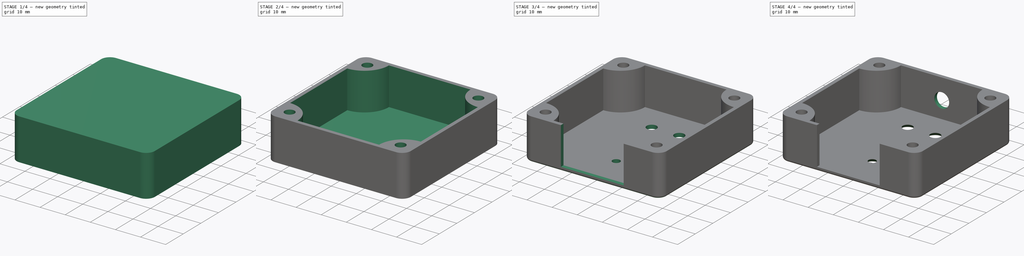
[diagram: build sequence overview — one tinted view per stage of 4, left to right]
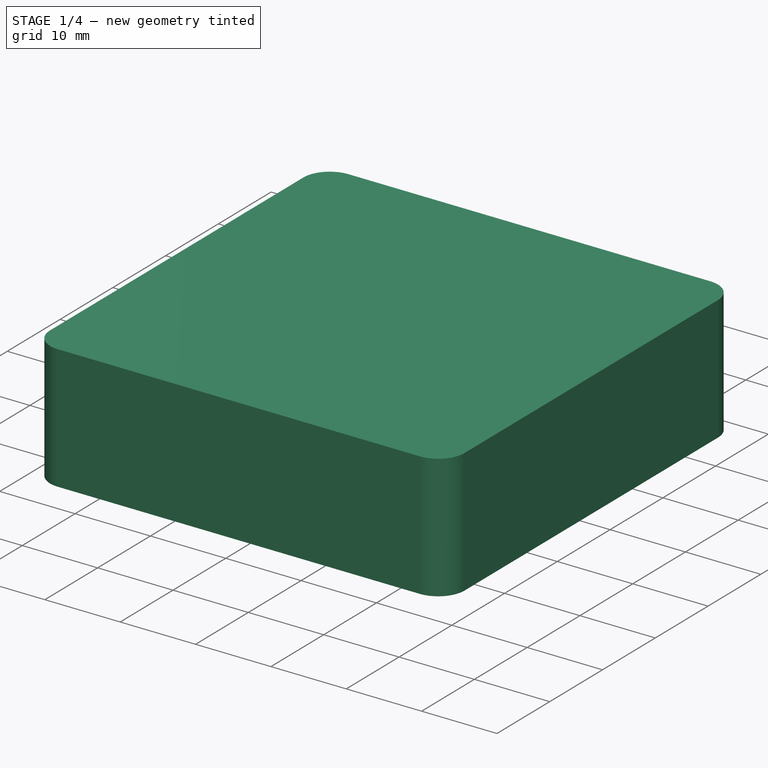
[diagram: stage 1 of 4 — iso view after this stage's code; geometry added in this stage tinted green]
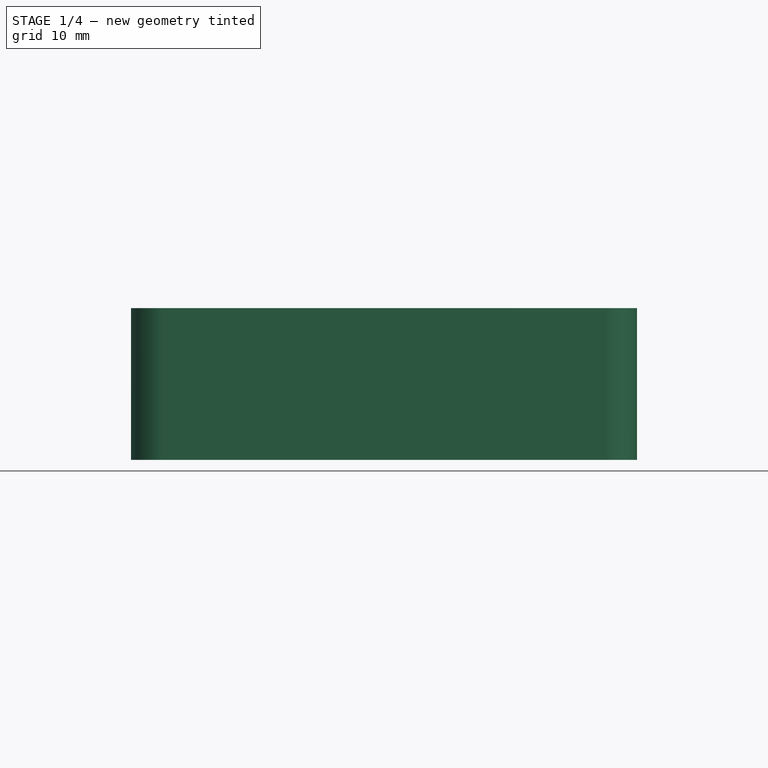
[diagram: stage 1 of 4 — front view after this stage's code; geometry added in this stage tinted green]
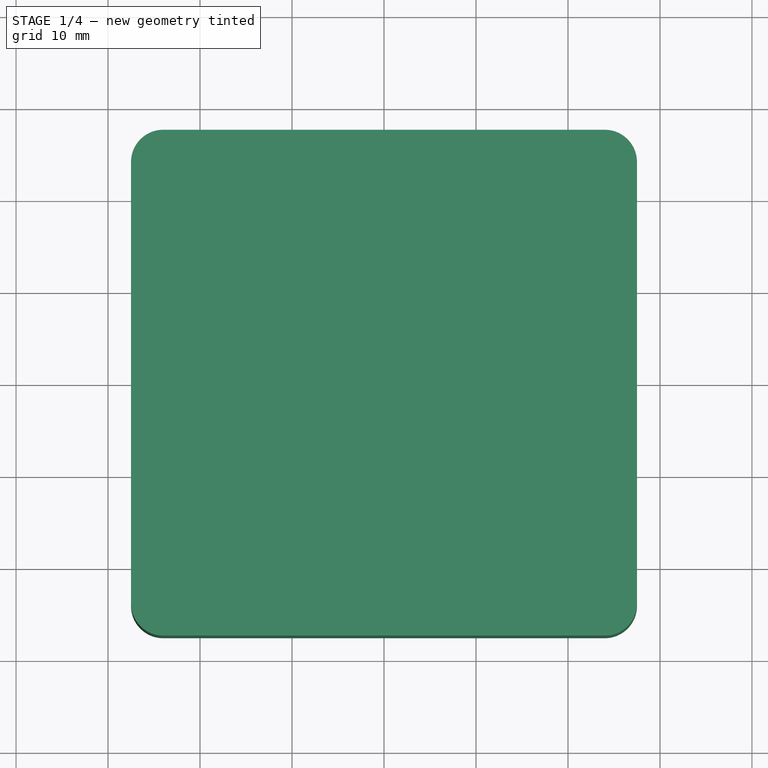
[diagram: stage 1 of 4 — top view after this stage's code; geometry added in this stage tinted green]
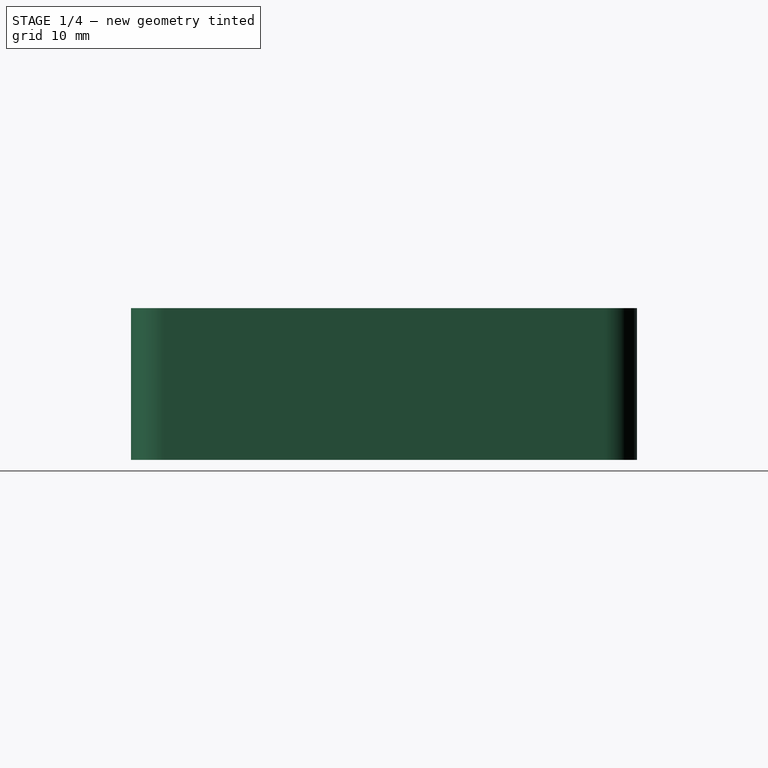
[diagram: stage 1 of 4 — right view after this stage's code; geometry added in this stage tinted green]
FCSTD DOCUMENT  (FreeCAD 1.0R39109 (Git))
Label: Key4_CoverBox_RD
License: All rights reserved
LicenseURL: http://en.wikipedia.org/wiki/All_rights_reserved
objects: Sketcher::SketchObject×7, PartDesign::Pocket×5, PartDesign::Pad×4, Part::Part2DObjectPython×4, PartDesign::Mirrored×2, PartDesign::Body×2, Spreadsheet::Sheet×1, PartDesign::MultiTransform×1, PartDesign::Fillet×1, PartDesign::Chamfer×1, App::Part×1
note: 59 computed .brp shape members not serialized (recipe doc carries the construction recipe); baked Part::Feature solids carry a one-line shape summary decoded from their .brp

FEATURE [Spreadsheet::Sheet] Spreadsheet  label="p"
  cells = A1='box_outer_width; B1(box_outer_width)=55; A2='box_outer_length; B2(box_outer_length)=55; A3='box_outer_depth; B3(box_outer_depth)=16.5; A5='box_inner_width; B5(box_inner_width)==B1 - B12 * 2; C5='Calculated; A6='box_inner_length; B6(box_inner_length)==B2 - B12 * 2; C6='Calculated; A7='box_inner_depth; B7(box_inner_depth)==B3 - B12; C7='Calculated; A9='box_outer_radius; B9(box_outer_radius)==B12 + 2; C9='Calculated; A10='box_inner_radius; B10(box_inner_radius)==B9 / 2; C10='Calculated; A12='box_wall_thickness; B12(box_wall_thickness)=1.5; A13='box_wall_clearance; B13(box_wall_clearance)==B12 * 0.2; C13='Calculated 20%; A15='lug_insert_diameter; B15(lug_insert_diameter)=3.9; A16='lug_depth; B16(lug_depth)==B7; A17='lug_outer_radius; B17(lug_outer_radius)==B15 * 2.5; A19='face_fillet; B19(face_fillet)=1; A21='lid_ridge_size; B21(lid_ridge_size)=1.5; A22='lid_screw_diameter; B22(lid_screw_diameter)=3; A23='lid_screw_chamfer; B23(lid_screw_chamfer)=1.98
FEATURE [Sketcher::SketchObject] Sketch  label="Main Body Sketch"
  ArcFitTolerance = 0
  AttachmentSupport = -> [XY_Plane001]
  FullyConstrained = true
  MakeInternals = false
  MapMode = 5
  expr: Constraints[16] = <<p>>.box_outer_radius
  expr: Constraints[17] = <<p>>.box_outer_width / 2
  expr: Constraints[18] = <<p>>.box_outer_length / 2
  sketch-geometry (8):
    g0: LineSegment StartX=-24 StartY=27.5 StartZ=0 EndX=24 EndY=27.5 EndZ=0
    g1: LineSegment StartX=27.5 StartY=24 StartZ=0 EndX=27.5 EndY=-24 EndZ=0
    g2: LineSegment StartX=24 StartY=-27.5 StartZ=0 EndX=-24 EndY=-27.5 EndZ=0
    g3: LineSegment StartX=-27.5 StartY=-24 StartZ=0 EndX=-27.5 EndY=24 EndZ=0
    g4: ArcOfCircle CenterX=-24 CenterY=24 CenterZ=0 NormalX=0 NormalY=0 NormalZ=1 AngleXU=0 Radius=3.5 StartAngle=1.5708 EndAngle=3.14159
    g5: ArcOfCircle CenterX=24 CenterY=24 CenterZ=0 NormalX=0 NormalY=0 NormalZ=1 AngleXU=0 Radius=3.5 StartAngle=0 EndAngle=1.5708
    g6: ArcOfCircle CenterX=24 CenterY=-24 CenterZ=0 NormalX=0 NormalY=0 NormalZ=1 AngleXU=0 Radius=3.5 StartAngle=4.71239 EndAngle=6.28319
    g7: ArcOfCircle CenterX=-24 CenterY=-24 CenterZ=0 NormalX=0 NormalY=0 NormalZ=1 AngleXU=0 Radius=3.5 StartAngle=3.14159 EndAngle=4.71239
  constraints (19):
    c: Horizontal(g0)
    c: Horizontal(g2)
    c: Vertical(g1)
    c: Vertical(g3)
    c: Tangent(g3,g4) = 1.5708
    c: Tangent(g0,g4) = 1.5708
    c: Tangent(g0,g5) = 1.5708
    c: Tangent(g1,g5) = 1.5708
    c: Tangent(g1,g6) = 1.5708
    c: Tangent(g2,g6) = 1.5708
    c: Tangent(g2,g7) = 1.5708
    c: Tangent(g3,g7) = 1.5708
    c: Symmetric(g5,g7,g-1)
    c: Equal(g6,g7)
    c: Equal(g7,g4)
    c: Equal(g4,g5)
    c: Radius(g5) = 3.5
    c: DistanceX(g3,g-1) = 27.5
    c: DistanceY(g-1,g0) = 27.5
FEATURE [PartDesign::Pad] Pad  label="Box Outer Body"
  Direction = (0,0,1)
  Length = 16.5
  Length2 = 10
  Profile = -> Sketch
  ReferenceAxis = -> Sketch [N_Axis]
  Suppressed = false
  Type = 0
  expr: Length = <<p>>.box_outer_depth
FEATURE [PartDesign::Body] Body  label="Main Box"
  AllowCompound = false
  Group = -> [Sketch,Pad,Sketch001,Pocket,Sketch002,Pad001,MultiTransform,Mirrored,Mirrored001,Fillet,Sketch008,Pocket003,Sketch010,Pocket004,Sketch011,Pocket005,Chamfer,Clone2D,Pocket006]
  Origin = -> Origin001
  Tip = -> Pocket006
FEATURE [App::Part] Part  label="Box"
  Group = -> [Body]
  Origin = -> Origin
FEATURE [Sketcher::SketchObject] Sketch012
  ArcFitTolerance = 1e-06
  AttachmentOffset = pos=(0,0,0.5) rot=(0,0,1;0rad)
  AttachmentSupport = -> [XY_Plane002]
  FullyConstrained = false
  MakeInternals = false
  MapMode = 5
  Placement = pos=(0,0,0.5) rot=(0,0,1;0rad)
  sketch-geometry (4):
    g0: LineSegment StartX=22.9008 StartY=7.54961 StartZ=0 EndX=-22.9867 EndY=7.54961 EndZ=0
    g1: LineSegment StartX=-22.9867 StartY=7.54961 StartZ=0 EndX=-22.9867 EndY=-7.25015 EndZ=0
    g2: LineSegment StartX=-22.9867 StartY=-7.25015 StartZ=0 EndX=22.9008 EndY=-7.25015 EndZ=0
    g3: LineSegment StartX=22.9008 StartY=-7.25015 StartZ=0 EndX=22.9008 EndY=7.54961 EndZ=0
  constraints (8):
    c: Coincident(g0,g1)
    c: Coincident(g1,g2)
    c: Coincident(g2,g3)
    c: Coincident(g3,g0)
    c: Horizontal(g0)
    c: Horizontal(g2)
    c: Vertical(g1)
    c: Vertical(g3)
FEATURE [PartDesign::Pad] Pad002
  Direction = (0,0,1)
  Length = 0.1
  Length2 = 10
  Profile = -> Sketch012
  ReferenceAxis = -> Sketch012 [N_Axis]
  Reversed = true
  Suppressed = false
  Type = 0
FEATURE [Part::Part2DObjectPython] ShapeString001  # Draft 2D object (typed FeaturePython)
  AttachmentSupport = -> [Chamfer]
  FontFile = <path>
  Fuse = false
  Justification = 4
  JustificationReference = 0
  KeepLeftMargin = false
  MakeFace = true
  ObliqueAngle = 0
  Placement = pos=(0,0,0) rot=(0,0,1;3.14159rad)
  ScaleToSize = true
  Size = 14
  String = RDVN
  Tracking = 0
FEATURE [Part::Part2DObjectPython] Clone2D001  label="ShapeString001 (2D)"  # Draft 2D object (typed FeaturePython)
  Fuse = false
  Objects = -> [ShapeString001]
  Placement = pos=(0,0,0) rot=(0,0,1;3.14159rad)
  Scale = (1,-1,1)
FEATURE [PartDesign::Pad] Pad003
  BaseFeature = -> Pad002
  Direction = (0,0,1)
  Length = 0.4
  Length2 = 10
  Profile = -> Clone2D001
  ReferenceAxis = -> Clone2D001 [N_Axis]
  Suppressed = false
  Type = 0
FEATURE [PartDesign::Body] Body001  label="RDVNBox"
  AllowCompound = false
  Group = -> [Sketch012,Pad002,Clone2D001,Pad003]
  Origin = -> Origin002
  Tip = -> Pad003
note: 2 file-system paths scrubbed to <path> (originals preserved in the JSON sidecar)
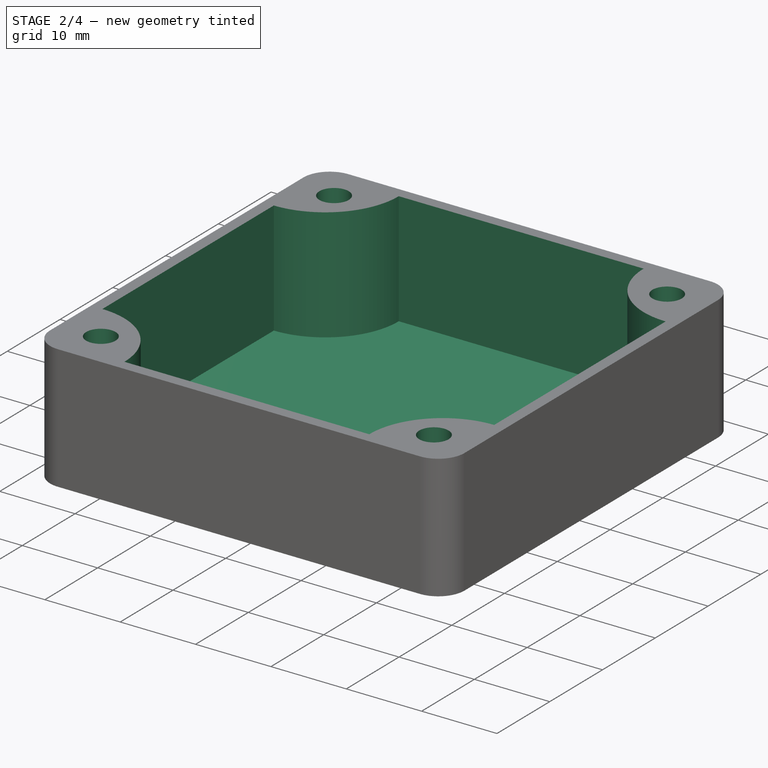
[diagram: stage 2 of 4 — iso view after this stage's code; geometry added in this stage tinted green]
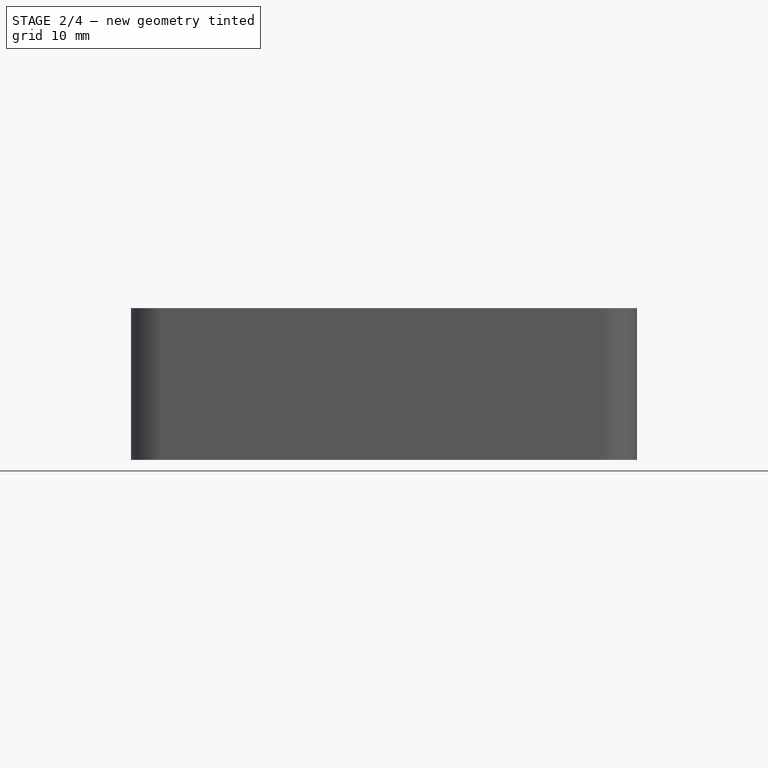
[diagram: stage 2 of 4 — front view after this stage's code; geometry added in this stage tinted green]
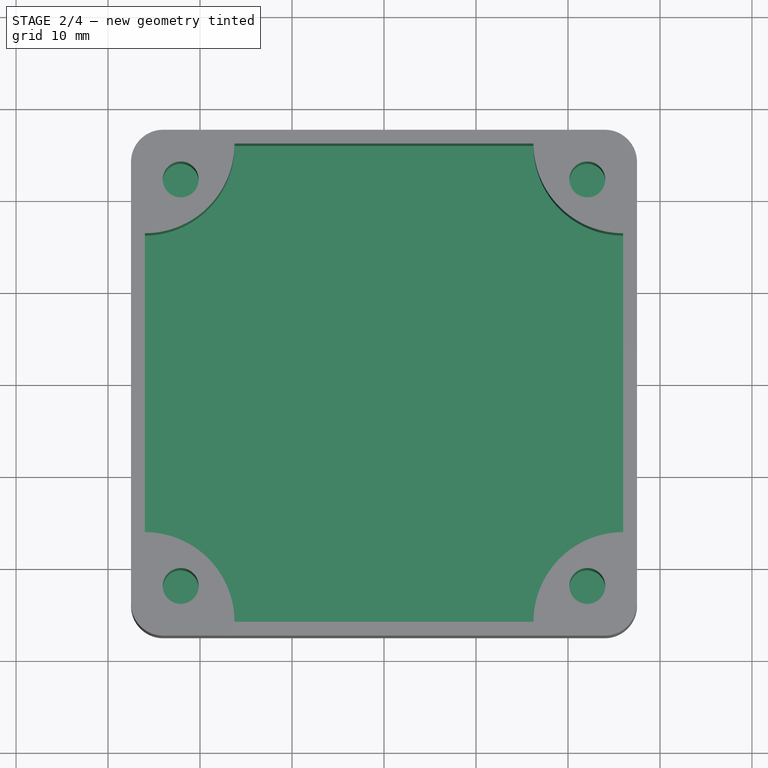
[diagram: stage 2 of 4 — top view after this stage's code; geometry added in this stage tinted green]
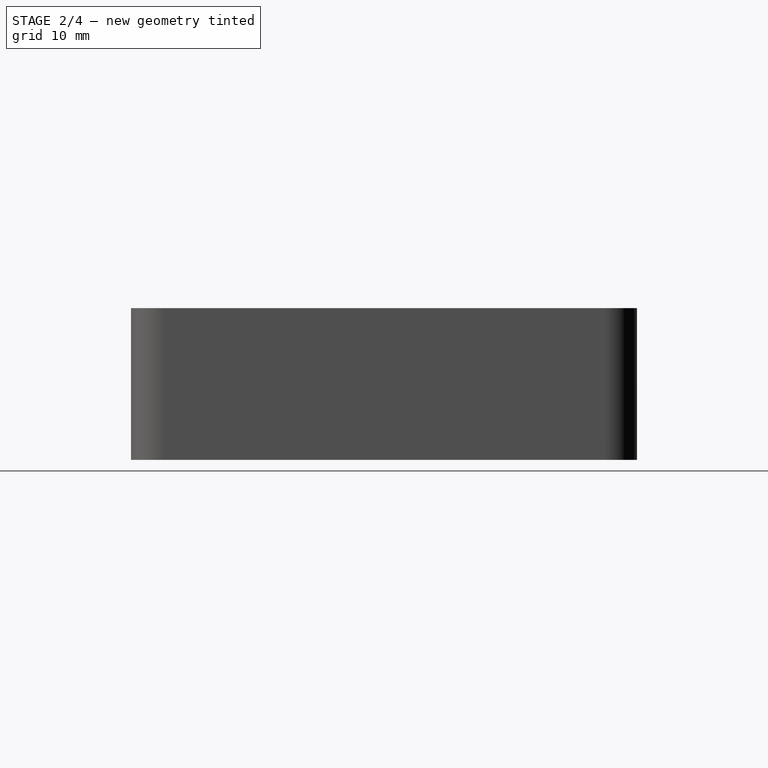
[diagram: stage 2 of 4 — right view after this stage's code; geometry added in this stage tinted green]
FEATURE [Sketcher::SketchObject] Sketch001  label="Inner Body Sketch"
  ArcFitTolerance = 0
  AttachmentSupport = -> [Pad]
  FullyConstrained = true
  MakeInternals = false
  MapMode = 5
  Placement = pos=(0,0,16.5) rot=(0,0,1;0rad)
  expr: Constraints[16] = <<p>>.box_inner_width / 2
  expr: Constraints[17] = <<p>>.box_inner_length / 2
  expr: Constraints[18] = <<p>>.box_inner_radius
  sketch-geometry (8):
    g0: LineSegment StartX=-24.25 StartY=26 StartZ=0 EndX=24.25 EndY=26 EndZ=0
    g1: LineSegment StartX=26 StartY=24.25 StartZ=0 EndX=26 EndY=-24.25 EndZ=0
    g2: LineSegment StartX=24.25 StartY=-26 StartZ=0 EndX=-24.25 EndY=-26 EndZ=0
    g3: LineSegment StartX=-26 StartY=-24.25 StartZ=0 EndX=-26 EndY=24.25 EndZ=0
    g4: ArcOfCircle CenterX=-24.25 CenterY=24.25 CenterZ=0 NormalX=0 NormalY=0 NormalZ=1 AngleXU=0 Radius=1.75 StartAngle=1.5708 EndAngle=3.14159
    g5: ArcOfCircle CenterX=24.25 CenterY=24.25 CenterZ=0 NormalX=0 NormalY=0 NormalZ=1 AngleXU=0 Radius=1.75 StartAngle=1e-16 EndAngle=1.5708
    g6: ArcOfCircle CenterX=24.25 CenterY=-24.25 CenterZ=0 NormalX=0 NormalY=0 NormalZ=1 AngleXU=0 Radius=1.75 StartAngle=4.71239 EndAngle=6.28319
    g7: ArcOfCircle CenterX=-24.25 CenterY=-24.25 CenterZ=0 NormalX=0 NormalY=0 NormalZ=1 AngleXU=0 Radius=1.75 StartAngle=3.14159 EndAngle=4.71239
  constraints (19):
    c: Horizontal(g0)
    c: Horizontal(g2)
    c: Vertical(g1)
    c: Vertical(g3)
    c: Tangent(g3,g4) = 1.5708
    c: Tangent(g0,g4) = 1.5708
    c: Tangent(g0,g5) = 1.5708
    c: Tangent(g1,g5) = 1.5708
    c: Tangent(g1,g6) = 1.5708
    c: Tangent(g2,g6) = 1.5708
    c: Tangent(g2,g7) = 1.5708
    c: Tangent(g3,g7) = 1.5708
    c: Equal(g4,g5)
    c: Equal(g5,g6)
    c: Equal(g6,g7)
    c: Symmetric(g5,g7,g-1)
    c: DistanceX(g3,g-1) = 26
    c: DistanceY(g-1,g0) = 26
    c: Radius(g5) = 1.75
FEATURE [PartDesign::Pocket] Pocket  label="Box Inner Pocket"
  BaseFeature = -> Pad
  Direction = (0,0,-1)
  Length = 15
  Length2 = 5
  Profile = -> Sketch001
  ReferenceAxis = -> Sketch001 [N_Axis]
  Suppressed = false
  Type = 0
  expr: Length = <<p>>.box_inner_depth
FEATURE [Sketcher::SketchObject] Sketch002  label="Lug Sketch"
  ArcFitTolerance = 0
  AttachmentSupport = -> [Pocket]
  FullyConstrained = true
  MakeInternals = false
  MapMode = 5
  Placement = pos=(0,0,1.5) rot=(0,0,1;0rad)
  expr: Constraints[10] = <<p>>.lug_insert_diameter
  expr: Constraints[11] = <<p>>.lug_insert_diameter
  expr: Constraints[6] = <<p>>.lug_outer_radius
  expr: Constraints[7] = <<p>>.box_inner_width / 2
  expr: Constraints[8] = <<p>>.box_inner_length / 2
  expr: Constraints[9] = <<p>>.lug_insert_diameter
  sketch-geometry (4):
    g0: LineSegment StartX=-26 StartY=16.25 StartZ=0 EndX=-26 EndY=26 EndZ=0
    g1: LineSegment StartX=-26 StartY=26 StartZ=0 EndX=-16.25 EndY=26 EndZ=0
    g2: ArcOfCircle CenterX=-26 CenterY=26 CenterZ=0 NormalX=0 NormalY=0 NormalZ=1 AngleXU=0 Radius=9.75 StartAngle=4.71239 EndAngle=6.28319
    g3: Circle CenterX=-22.1 CenterY=22.1 CenterZ=0 NormalX=0 NormalY=0 NormalZ=1 AngleXU=0 Radius=1.95
  constraints (12):
    c: Vertical(g0)
    c: Coincident(g0,g1)
    c: Horizontal(g1)
    c: Coincident(g2,g0)
    c: Coincident(g2,g1)
    c: Coincident(g2,g0)
    c: Radius(g2) = 9.75
    c: DistanceX(g0,g-1) = 26
    c: DistanceY(g-1,g0) = 26
    c: Diameter(g3) = 3.9
    c: DistanceX(g0,g3) = 3.9
    c: DistanceY(g3,g0) = 3.9
FEATURE [PartDesign::Pad] Pad001  label="Lug"
  BaseFeature = -> Pocket
  Direction = (0,0,1)
  Length = 15
  Length2 = 10
  Profile = -> Sketch002
  ReferenceAxis = -> Sketch002 [N_Axis]
  Suppressed = false
  Type = 0
  expr: Length = <<p>>.lug_depth
FEATURE [PartDesign::Mirrored] Mirrored
  MirrorPlane = -> Sketch002 [V_Axis]
  Suppressed = false
  TransformMode = 0
FEATURE [PartDesign::Mirrored] Mirrored001
  MirrorPlane = -> Sketch002 [H_Axis]
  Suppressed = false
  TransformMode = 0
FEATURE [PartDesign::MultiTransform] MultiTransform  label="Lugs Mirror"
  BaseFeature = -> Pad001
  Originals = -> [Pad001]
  Suppressed = false
  TransformMode = 0
  Transformations = -> [Mirrored,Mirrored001]
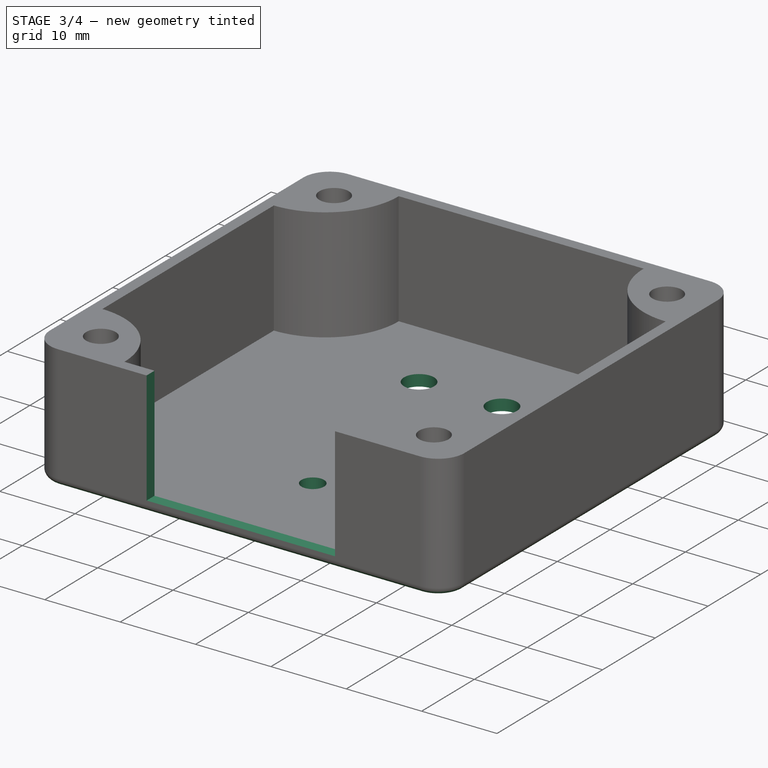
[diagram: stage 3 of 4 — iso view after this stage's code; geometry added in this stage tinted green]
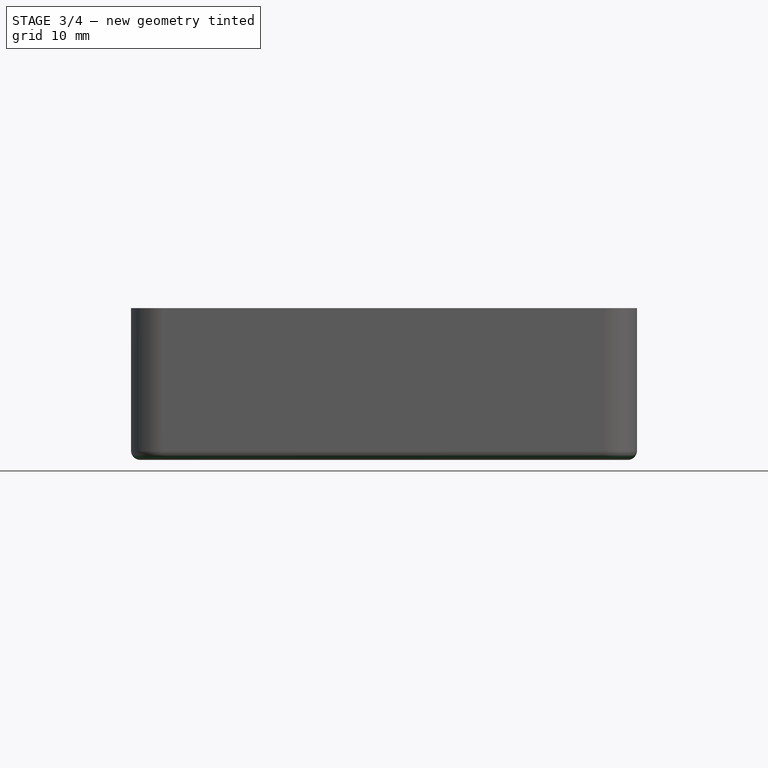
[diagram: stage 3 of 4 — front view after this stage's code; geometry added in this stage tinted green]
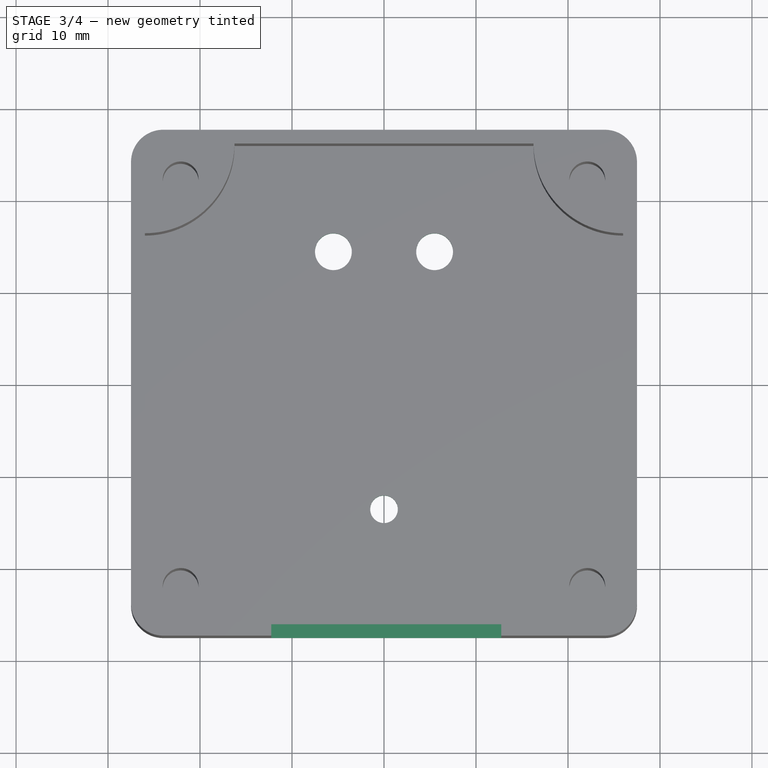
[diagram: stage 3 of 4 — top view after this stage's code; geometry added in this stage tinted green]
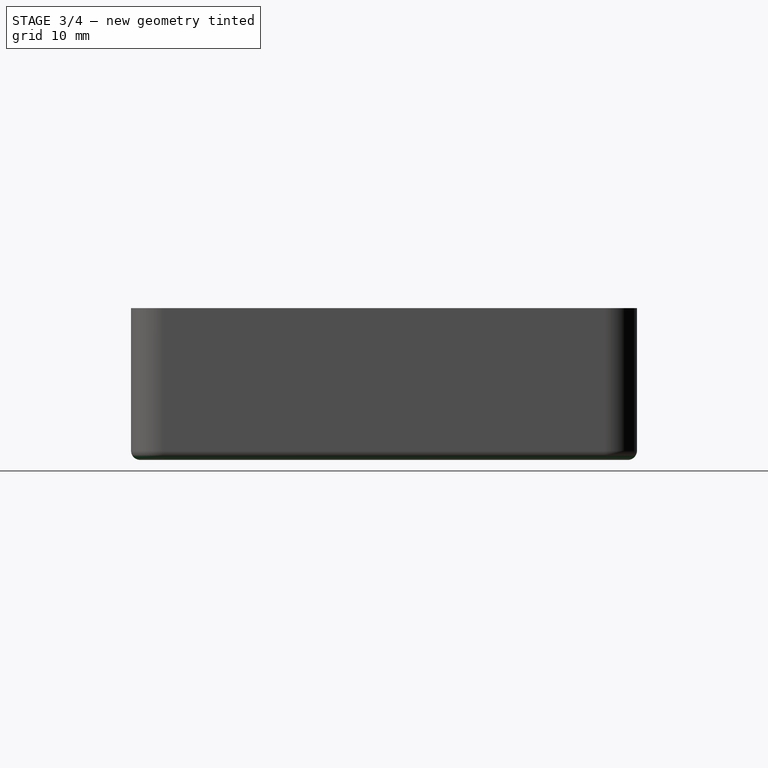
[diagram: stage 3 of 4 — right view after this stage's code; geometry added in this stage tinted green]
FEATURE [PartDesign::Fillet] Fillet
  Base = -> MultiTransform [Edge3,Edge9,Edge11,Edge12,Edge13,Edge14,Edge15,Edge6]
  BaseFeature = -> MultiTransform
  Radius = 1
  SupportTransform = false
  Suppressed = false
  UseAllEdges = false
  expr: Radius = Spreadsheet.face_fillet
FEATURE [Sketcher::SketchObject] Sketch008
  ArcFitTolerance = 0
  AttachmentSupport = -> [Fillet]
  FullyConstrained = true
  MakeInternals = false
  MapMode = 5
  Placement = pos=(0,-27.5,0) rot=(1,0,0;1.5708rad)
  sketch-geometry (4):
    g0: LineSegment StartX=-12.25 StartY=16.5 StartZ=0 EndX=12.75 EndY=16.5 EndZ=0
    g1: LineSegment StartX=12.75 StartY=16.5 StartZ=0 EndX=12.75 EndY=1.5 EndZ=0
    g2: LineSegment StartX=12.75 StartY=1.5 StartZ=0 EndX=-12.25 EndY=1.5 EndZ=0
    g3: LineSegment StartX=-12.25 StartY=1.5 StartZ=0 EndX=-12.25 EndY=16.5 EndZ=0
  constraints (12):
    c: Coincident(g0,g1)
    c: Coincident(g1,g2)
    c: Coincident(g2,g3)
    c: Coincident(g3,g0)
    c: Horizontal(g0)
    c: Horizontal(g2)
    c: Vertical(g1)
    c: Vertical(g3)
    c: DistanceX(g0,g0) = 25
    c: DistanceX(g0,g-1) = 12.25
    c: DistanceY(g1,g1) = 15
    c: DistanceY(g-1,g2) = 1.5
FEATURE [PartDesign::Pocket] Pocket003
  BaseFeature = -> Fillet
  Direction = (0,1,-2e-16)
  Length = 5
  Length2 = 5
  Profile = -> Sketch008
  ReferenceAxis = -> Sketch008 [N_Axis]
  Suppressed = false
  Type = 0
FEATURE [Sketcher::SketchObject] Sketch010
  ArcFitTolerance = 0
  AttachmentSupport = -> [Pocket003]
  FullyConstrained = true
  MakeInternals = false
  MapMode = 5
  Placement = pos=(0,0,1.5) rot=(0,0,1;0rad)
  expr: Constraints[7] = <<p>>.box_outer_width / 2 - 42
  expr: Constraints[8] = <<p>>.box_outer_length / 2 - 14
  sketch-geometry (3):
    g0: Circle CenterX=0 CenterY=-13.5 CenterZ=0 NormalX=0 NormalY=0 NormalZ=1 AngleXU=0 Radius=1.5
    g1: Circle CenterX=-5.5 CenterY=14.5 CenterZ=0 NormalX=0 NormalY=0 NormalZ=1 AngleXU=0 Radius=2
    g2: Circle CenterX=5.5 CenterY=14.5 CenterZ=0 NormalX=0 NormalY=0 NormalZ=1 AngleXU=0 Radius=2
  constraints (9):
    c: PointOnObject(g0,g-2)
    c: Diameter(g2) = 4
    c: Diameter(g1) = 4
    c: Diameter(g0) = 3
    c: DistanceY(g2,g1) = 0
    c: DistanceX(g1,g2) = 11
    c: DistanceX(g1,g-1) = 5.5
    c: DistanceY(g1,g-1) = -14.5
    c: DistanceY(g0,g-1) = 13.5
FEATURE [PartDesign::Pocket] Pocket004
  BaseFeature = -> Pocket003
  Direction = (0,0,-1)
  Length = 5
  Length2 = 5
  Profile = -> Sketch010
  ReferenceAxis = -> Sketch010 [N_Axis]
  Suppressed = false
  Type = 0
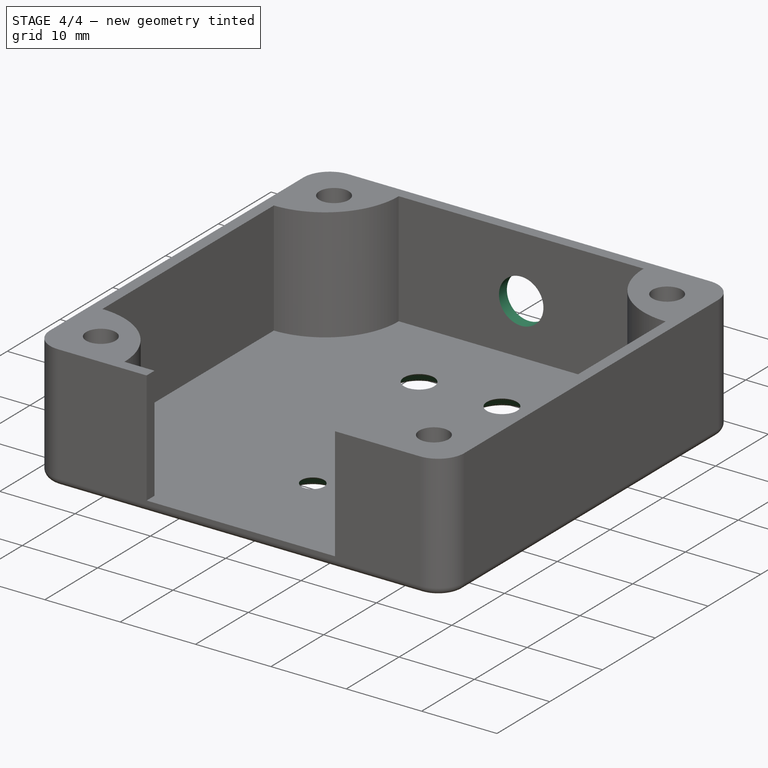
[diagram: stage 4 of 4 — iso view after this stage's code; geometry added in this stage tinted green]
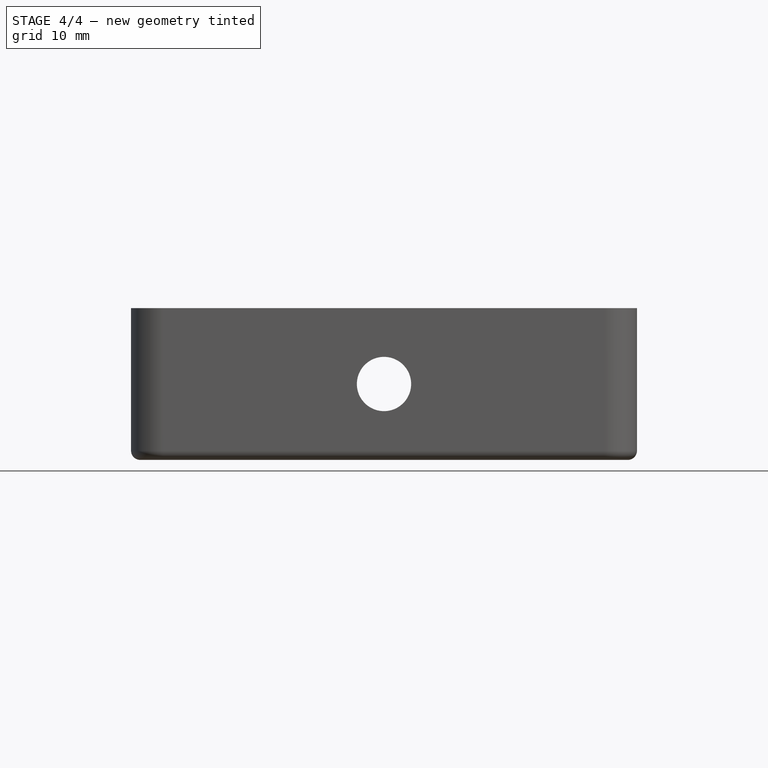
[diagram: stage 4 of 4 — front view after this stage's code; geometry added in this stage tinted green]
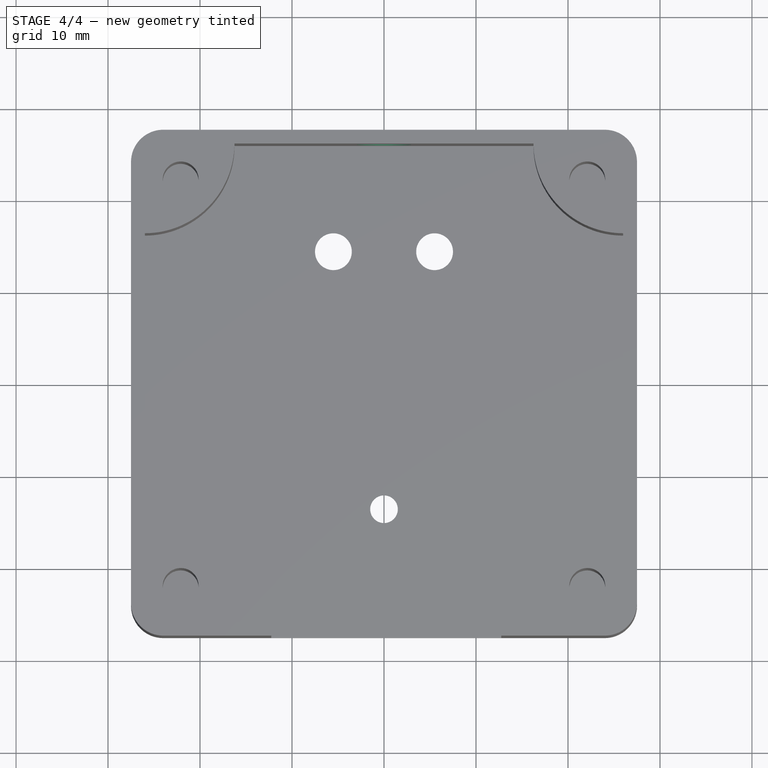
[diagram: stage 4 of 4 — top view after this stage's code; geometry added in this stage tinted green]
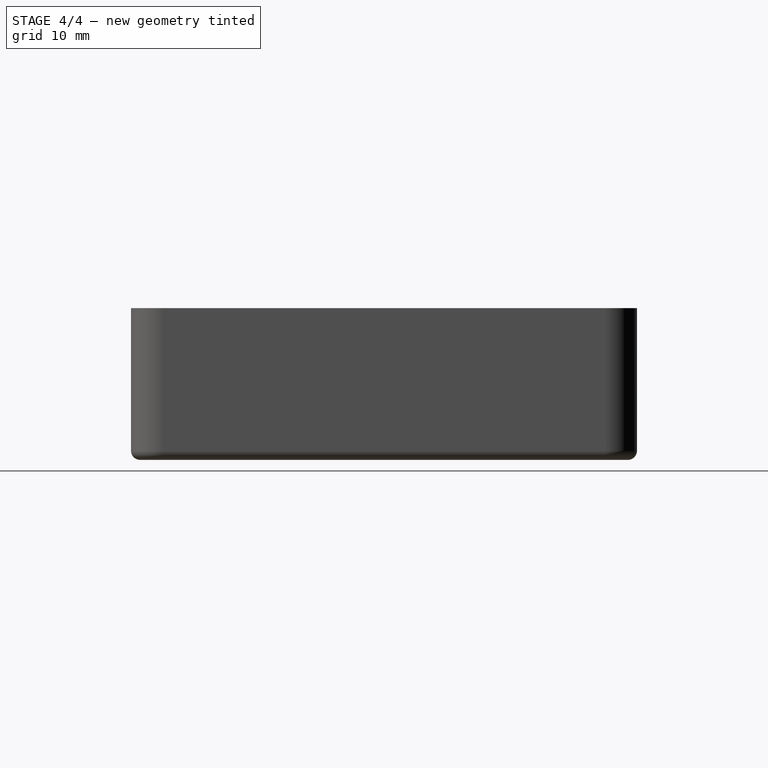
[diagram: stage 4 of 4 — right view after this stage's code; geometry added in this stage tinted green]
FEATURE [Sketcher::SketchObject] Sketch011
  ArcFitTolerance = 0
  AttachmentSupport = -> [Pocket004]
  FullyConstrained = true
  MakeInternals = false
  MapMode = 5
  Placement = pos=(0,27.5,0) rot=(0,0.707107,0.707107;3.14159rad)
  sketch-geometry (1):
    g0: Circle CenterX=0 CenterY=8.25 CenterZ=0 NormalX=0 NormalY=0 NormalZ=1 AngleXU=0 Radius=2.95
  constraints (3):
    c: PointOnObject(g0,g-2)
    c: Diameter(g0) = 5.9
    c: DistanceY(g-1,g0) = 8.25
FEATURE [PartDesign::Pocket] Pocket005
  BaseFeature = -> Pocket004
  Direction = (0,-1,2e-16)
  Length = 5
  Length2 = 5
  Profile = -> Sketch011
  ReferenceAxis = -> Sketch011 [N_Axis]
  Suppressed = false
  Type = 0
FEATURE [PartDesign::Chamfer] Chamfer
  Angle = 45
  Base = -> Pocket005 [Edge58,Edge57,Edge56]
  BaseFeature = -> Pocket005
  ChamferType = 0
  FlipDirection = false
  Size = 1.499
  Size2 = 1
  SupportTransform = false
  Suppressed = false
  UseAllEdges = false
FEATURE [Part::Part2DObjectPython] ShapeString  # Draft 2D object (typed FeaturePython)
  AttachmentSupport = -> [Chamfer]
  FontFile = <path>
  Fuse = false
  Justification = 4
  JustificationReference = 0
  KeepLeftMargin = false
  MakeFace = true
  ObliqueAngle = 0
  Placement = pos=(0,0,0) rot=(0,0,1;3.14159rad)
  ScaleToSize = true
  Size = 14
  String = RDVN
  Tracking = 0
FEATURE [Part::Part2DObjectPython] Clone2D  label="ShapeString (2D)"  # Draft 2D object (typed FeaturePython)
  Fuse = false
  Objects = -> [ShapeString]
  Placement = pos=(0,0,0) rot=(0,0,1;3.14159rad)
  Scale = (1,-1,1)
FEATURE [PartDesign::Pocket] Pocket006  label="RDVN"
  BaseFeature = -> Chamfer
  Direction = (0,0,-1)
  Length = 0.5
  Length2 = 5
  Profile = -> Clone2D
  ReferenceAxis = -> Clone2D [N_Axis]
  Reversed = true
  Suppressed = false
  Type = 0
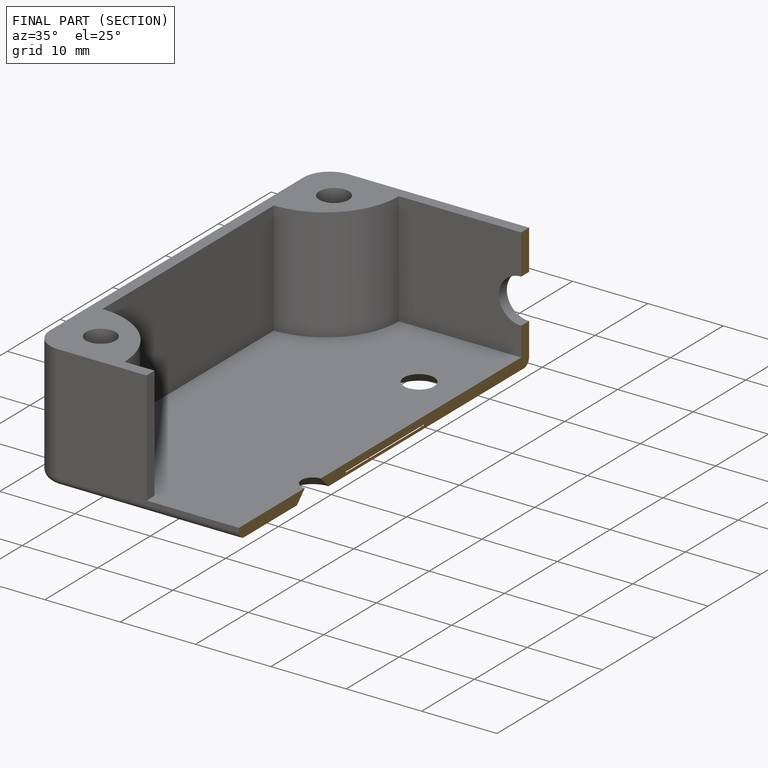
[diagram: finished part — half-section view (interior)]
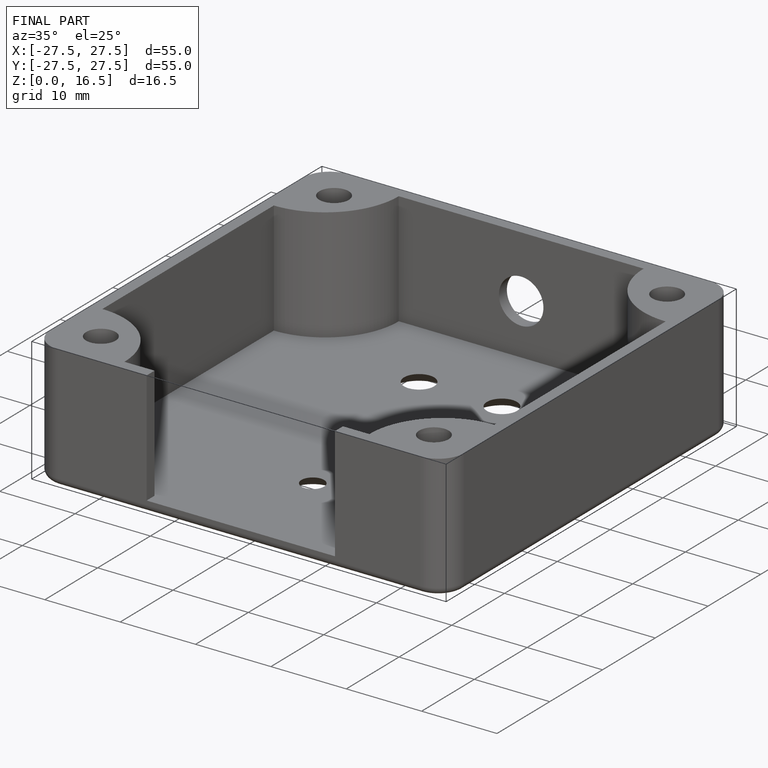
[diagram: finished part — iso view with bounding-box wireframe]
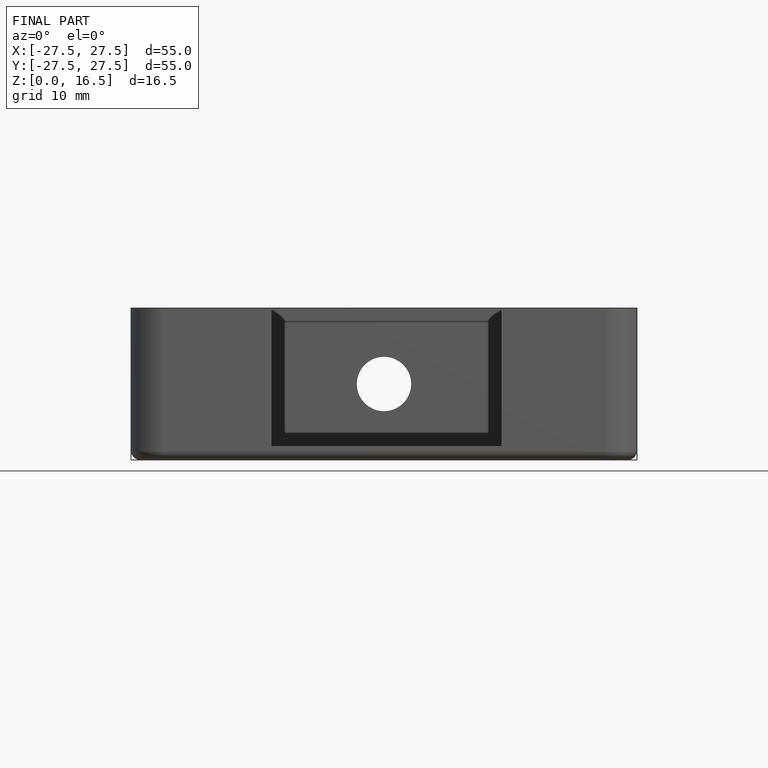
[diagram: finished part — front view with bounding-box wireframe]
